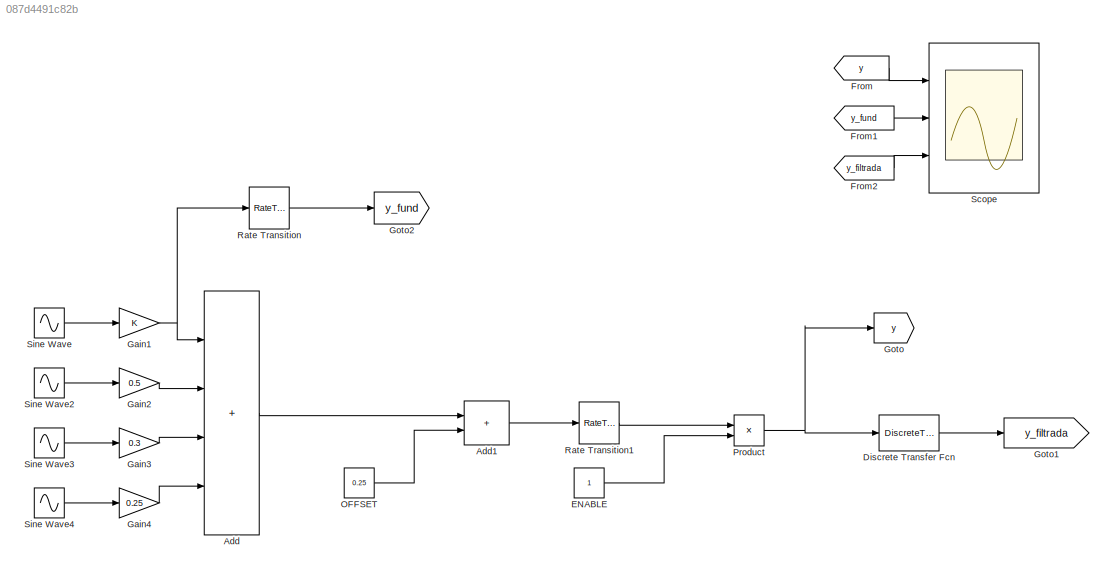
MODEL slx_087d4491c82b
KIND model
CONFIG AbsTol = auto
CONFIG EnableMultiTasking = on
CONFIG FixedStep = 1e-4
CONFIG MaxStep = auto
CONFIG MinStep = auto
CONFIG RelTol = 1e-3
CONFIG SampleTimeConstraint = Unconstrained
CONFIG SolverName = ode4
CONFIG StartTime = 0.0
CONFIG StopTime = Inf
BLOCK [Sum] Add
  IconShape = rectangular
  Inputs = 4
  Ports = [4, 1]
BLOCK [Sum] Add1
  IconShape = rectangular
  Inputs = 2
  Ports = [2, 1]
BLOCK [DiscreteTransferFcn] Discrete Transfer Fcn
  Denominator = Gz.Den{1}
  InputPortMap = u0
  Numerator = Gz.Num{1}
  Ports = [1, 1]
  SampleTime = 1e-3
BLOCK [Constant] ENABLE
  SampleTime = 1e-3
BLOCK [From] From
  GotoTag = y
BLOCK [From] From1
  GotoTag = y_fund
BLOCK [From] From2
  GotoTag = y_filtrada
BLOCK [Gain] Gain1
BLOCK [Gain] Gain2
  Gain = 0.5
BLOCK [Gain] Gain3
  Gain = 0.3
BLOCK [Gain] Gain4
  Gain = 0.25
BLOCK [Goto] Goto
  GotoTag = y
BLOCK [Goto] Goto1
  GotoTag = y_filtrada
BLOCK [Goto] Goto2
  GotoTag = y_fund
BLOCK [Constant] OFFSET
  SampleTime = 1e-4
  Value = 0.25
BLOCK [Product] Product
  Ports = [2, 1]
BLOCK [RateTransition] Rate Transition
  OutPortSampleTime = 1e-3
BLOCK [RateTransition] Rate Transition1
  OutPortSampleTime = 1e-3
BLOCK [Scope] Scope
  Floating = off
  NumInputPorts = 3
  Ports = [3]
  ScopeSpecificationString = Simulink.scopes.TimeScopeBlockCfg('CurrentConfiguration', extmgr.ConfigurationSet(extmgr.Configuration('Core','General UI',true),extmgr.Configuration('Core','Source UI',true),extmgr.Configuration('Sources','WiredSimulink',true,'SampleTime','1e-3'),extmgr.Configuration('Visuals','Time Domain',true,'SerializedDisplays',{struct('MinYLimReal','-1.03314','MaxYLimReal','1.53049','YLabelReal','Señal 1','...<+2792ch>
BLOCK [Sin] Sine Wave
  Frequency = 50*2*pi
  Ports = [0, 1]
  SampleTime = 1e-4
BLOCK [Sin] Sine Wave2
  Frequency = 150*2*pi
  Ports = [0, 1]
  SampleTime = 1e-4
BLOCK [Sin] Sine Wave3
  Amplitude = 0.3
  Frequency = 250*2*pi
  Ports = [0, 1]
  SampleTime = 1e-4
BLOCK [Sin] Sine Wave4
  Frequency = 350*2*pi
  Ports = [0, 1]
  SampleTime = 1e-4
LINE Add1:1 -> Rate Transition1:1
LINE Add:1 -> Add1:1
LINE Discrete Transfer Fcn:1 -> Goto1:1
LINE ENABLE:1 -> Product:2
LINE From1:1 -> Scope:2
LINE From2:1 -> Scope:3
LINE From:1 -> Scope:1
NET Gain1:1 -> Add:1, Rate Transition:1
LINE Gain2:1 -> Add:2
LINE Gain3:1 -> Add:3
LINE Gain4:1 -> Add:4
LINE OFFSET:1 -> Add1:2
NET Product:1 -> Discrete Transfer Fcn:1, Goto:1
LINE Rate Transition1:1 -> Product:1
LINE Rate Transition:1 -> Goto2:1
LINE Sine Wave2:1 -> Gain2:1
LINE Sine Wave3:1 -> Gain3:1
LINE Sine Wave4:1 -> Gain4:1
LINE Sine Wave:1 -> Gain1:1
note: NET lines group one-source signal fan-out (src -> all destinations, sorted); 1:1 wires keep LINE
